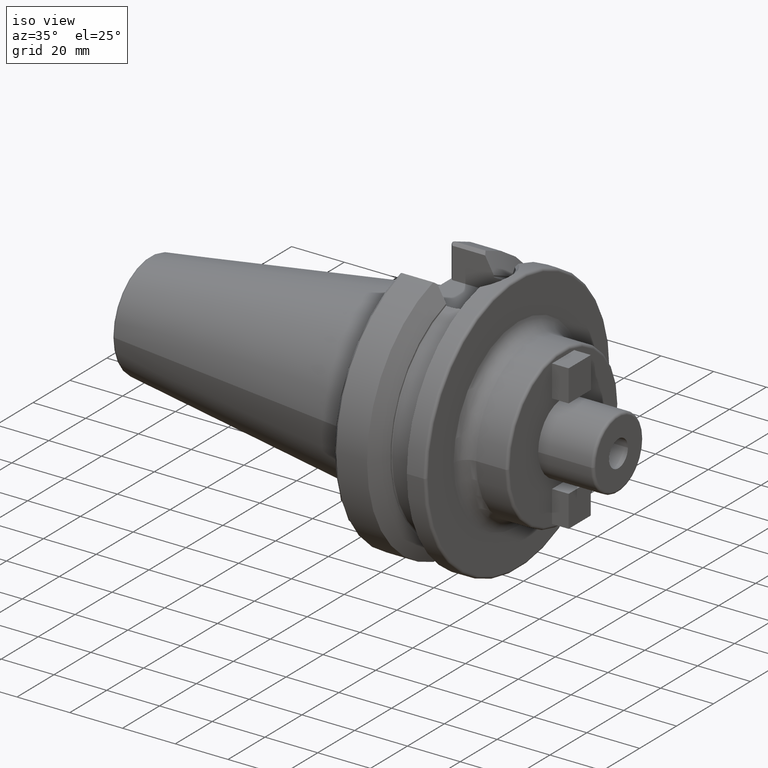
[diagram: clean part render]
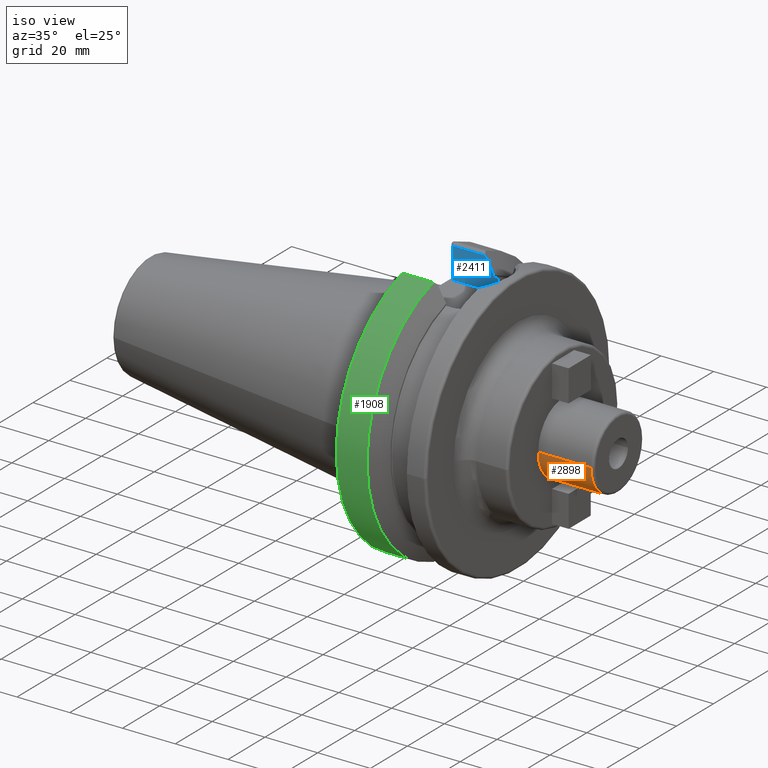
[diagram: same view with three faces highlighted in distinct colors, each labeled with its STEP entity id]
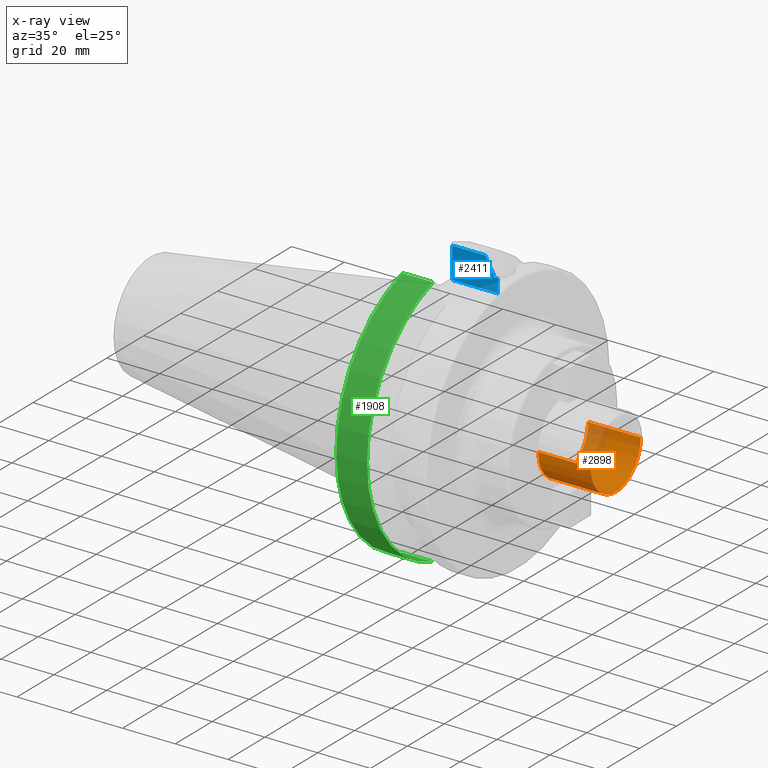
[diagram: x-ray of the same camera — body ghosted, the three highlighted faces saturated]
A machine part, iso view with three faces highlighted in distinct colors.
The next image is the same camera in x-ray (body ghosted, the three faces saturated) — at least one of them is partly hidden behind the body in this view.
Their STEP definitions:

[orange] entity #2898 — the highlighted cylindrical surface (partial cylindrical patch) has radius 13.5 mm, axis along (1, 0, 0).
#897=CARTESIAN_POINT('',(5.5E1,0.E0,0.E0));
#898=DIRECTION('',(-1.E0,0.E0,0.E0));
#899=DIRECTION('',(0.E0,1.E0,0.E0));
#900=AXIS2_PLACEMENT_3D('',#897,#898,#899);
#959=CARTESIAN_POINT('',(7.5E1,0.E0,0.E0));
#960=DIRECTION('',(-1.E0,0.E0,0.E0));
#961=DIRECTION('',(0.E0,1.E0,0.E0));
#962=AXIS2_PLACEMENT_3D('',#959,#960,#961);
#964=DIRECTION('',(-1.E0,0.E0,2.568791395901E-13));
#965=VECTOR('',#964,2.E1);
#966=CARTESIAN_POINT('',(7.5E1,1.35E1,-5.136480609683E-12));
#967=LINE('',#966,#965);
#968=DIRECTION('',(-1.E0,0.E0,-2.571582338920E-13));
#969=VECTOR('',#968,2.E1);
#970=CARTESIAN_POINT('',(7.5E1,-1.35E1,5.142062495721E-12));
#971=LINE('',#970,#969);
#1525=CARTESIAN_POINT('',(5.5E1,1.35E1,0.E0));
#1526=CARTESIAN_POINT('',(5.5E1,-1.35E1,0.E0));
#1527=VERTEX_POINT('',#1525);
#1528=VERTEX_POINT('',#1526);
#1587=CARTESIAN_POINT('',(7.5E1,1.35E1,0.E0));
#1588=CARTESIAN_POINT('',(7.5E1,-1.35E1,0.E0));
#1589=VERTEX_POINT('',#1587);
#1590=VERTEX_POINT('',#1588);
#2887=CARTESIAN_POINT('',(3.61E1,0.E0,0.E0));
#2888=DIRECTION('',(1.E0,0.E0,0.E0));
#2889=DIRECTION('',(0.E0,-1.E0,0.E0));
#2890=AXIS2_PLACEMENT_3D('',#2887,#2888,#2889);
#2891=CYLINDRICAL_SURFACE('',#2890,1.35E1);
#2892=ORIENTED_EDGE('',*,*,#2878,.F.);
#2893=ORIENTED_EDGE('',*,*,#2853,.T.);
#2894=ORIENTED_EDGE('',*,*,#2818,.T.);
#2895=ORIENTED_EDGE('',*,*,#2850,.F.);
#2896=EDGE_LOOP('',(#2892,#2893,#2894,#2895));
#2897=FACE_OUTER_BOUND('',#2896,.F.);
#2898=ADVANCED_FACE('',(#2897),#2891,.T.);
#901=CIRCLE('',#900,1.35E1);
#963=CIRCLE('',#962,1.35E1);
#2818=EDGE_CURVE('',#1527,#1528,#901,.T.);
#2850=EDGE_CURVE('',#1590,#1528,#971,.T.);
#2853=EDGE_CURVE('',#1589,#1527,#967,.T.);
#2878=EDGE_CURVE('',#1589,#1590,#963,.T.);

[blue] entity #2411 — the highlighted planar face has unit normal (0, 1, 0).
#639=DIRECTION('',(0.E0,0.E0,1.E0));
#640=VECTOR('',#639,4.678451531613E-1);
#641=CARTESIAN_POINT('',(1.96625E1,1.29025E1,4.062531376802E1));
#642=LINE('',#641,#640);
#643=CARTESIAN_POINT('',(1.99125E1,1.29025E1,4.036293000700E1));
#644=CARTESIAN_POINT('',(1.988482223968E1,1.29025E1,4.036293000700E1));
#645=CARTESIAN_POINT('',(1.983275140013E1,1.29025E1,4.037231907874E1));
#646=CARTESIAN_POINT('',(1.976358989115E1,1.29025E1,4.040921074747E1));
#647=CARTESIAN_POINT('',(1.970597803203E1,1.29025E1,4.046933362101E1));
#648=CARTESIAN_POINT('',(1.967010312706E1,1.29025E1,4.054571527488E1));
#649=CARTESIAN_POINT('',(1.96625E1,1.29025E1,4.059802443585E1));
#650=CARTESIAN_POINT('',(1.96625E1,1.29025E1,4.062531376802E1));
#652=DIRECTION('',(1.E0,0.E0,0.E0));
#653=VECTOR('',#652,1.435E0);
#654=CARTESIAN_POINT('',(1.99125E1,1.29025E1,4.036293000700E1));
#655=LINE('',#654,#653);
#656=DIRECTION('',(0.E0,0.E0,1.E0));
#657=VECTOR('',#656,5.162930007E0);
#658=CARTESIAN_POINT('',(2.13475E1,1.29025E1,3.52E1));
#659=LINE('',#658,#657);
#660=DIRECTION('',(0.E0,0.E0,1.E0));
#661=VECTOR('',#660,1.177335042340E1);
#662=CARTESIAN_POINT('',(4.E0,1.29025E1,3.52E1));
#663=LINE('',#662,#661);
#664=DIRECTION('',(1.E0,0.E0,0.E0));
#665=VECTOR('',#664,1.240508297825E1);
#666=CARTESIAN_POINT('',(4.E0,1.29025E1,4.697335042340E1));
#667=LINE('',#666,#665);
#668=CARTESIAN_POINT('',(1.96625E1,1.29025E1,4.109315892118E1));
#669=CARTESIAN_POINT('',(1.932181966297E1,1.29025E1,4.171163717070E1));
#670=CARTESIAN_POINT('',(1.862628256782E1,1.29025E1,4.297182203666E1));
#671=CARTESIAN_POINT('',(1.754114212137E1,1.29025E1,4.493063136453E1));
#672=CARTESIAN_POINT('',(1.678855217457E1,1.29025E1,4.628456220339E1));
#673=CARTESIAN_POINT('',(1.640508297825E1,1.29025E1,4.697335042340E1));
#687=DIRECTION('',(-1.E0,0.E0,0.E0));
#688=VECTOR('',#687,1.73475E1);
#689=CARTESIAN_POINT('',(2.13475E1,1.29025E1,3.52E1));
#690=LINE('',#689,#688);
#1314=CARTESIAN_POINT('',(1.96625E1,1.29025E1,4.062531376802E1));
#1316=VERTEX_POINT('',#1314);
#1322=CARTESIAN_POINT('',(1.99125E1,1.29025E1,4.036293000700E1));
#1324=VERTEX_POINT('',#1322);
#1351=CARTESIAN_POINT('',(1.96625E1,1.29025E1,4.109315892118E1));
#1353=VERTEX_POINT('',#1351);
#1441=CARTESIAN_POINT('',(2.13475E1,1.29025E1,3.52E1));
#1443=VERTEX_POINT('',#1441);
#1456=CARTESIAN_POINT('',(2.13475E1,1.29025E1,4.036293000700E1));
#1457=VERTEX_POINT('',#1456);
#1458=VERTEX_POINT('',#673);
#1496=CARTESIAN_POINT('',(4.E0,1.29025E1,3.52E1));
#1497=CARTESIAN_POINT('',(4.E0,1.29025E1,4.697335042340E1));
#1498=VERTEX_POINT('',#1496);
#1499=VERTEX_POINT('',#1497);
#2394=CARTESIAN_POINT('',(2.13475E1,1.29025E1,3.52E1));
#2395=DIRECTION('',(0.E0,1.E0,0.E0));
#2396=DIRECTION('',(-1.E0,0.E0,0.E0));
#2397=AXIS2_PLACEMENT_3D('',#2394,#2395,#2396);
#2398=PLANE('',#2397);
#2399=ORIENTED_EDGE('',*,*,#1836,.F.);
#2400=ORIENTED_EDGE('',*,*,#1990,.F.);
#2401=ORIENTED_EDGE('',*,*,#2022,.T.);
#2402=ORIENTED_EDGE('',*,*,#2139,.F.);
#2404=ORIENTED_EDGE('',*,*,#2403,.T.);
#2406=ORIENTED_EDGE('',*,*,#2405,.T.);
#2407=ORIENTED_EDGE('',*,*,#2387,.T.);
#2408=ORIENTED_EDGE('',*,*,#1868,.F.);
#2409=EDGE_LOOP('',(#2399,#2400,#2401,#2402,#2404,#2406,#2407,#2408));
#2410=FACE_OUTER_BOUND('',#2409,.F.);
#2411=ADVANCED_FACE('',(#2410),#2398,.F.);
#651=B_SPLINE_CURVE_WITH_KNOTS('',3,(#643,#644,#645,#646,#647,#648,#649,#650),
.UNSPECIFIED.,.F.,.F.,(4,1,1,1,1,4),(0.E0,2.E-1,4.E-1,6.E-1,8.E-1,1.E0),
.UNSPECIFIED.);
#674=B_SPLINE_CURVE_WITH_KNOTS('',3,(#668,#669,#670,#671,#672,#673),
.UNSPECIFIED.,.F.,.F.,(4,1,1,4),(0.E0,3.333333333333E-1,6.666666666667E-1,1.E0),
.UNSPECIFIED.);
#1836=EDGE_CURVE('',#1316,#1353,#642,.T.);
#1868=EDGE_CURVE('',#1353,#1458,#674,.T.);
#1990=EDGE_CURVE('',#1324,#1316,#651,.T.);
#2022=EDGE_CURVE('',#1324,#1457,#655,.T.);
#2139=EDGE_CURVE('',#1443,#1457,#659,.T.);
#2387=EDGE_CURVE('',#1499,#1458,#667,.T.);
#2403=EDGE_CURVE('',#1443,#1498,#690,.T.);
#2405=EDGE_CURVE('',#1498,#1499,#663,.T.);

[green] entity #1908 — the highlighted cylindrical surface (partial cylindrical patch) has radius 49.9875 mm, axis along (1, 0, 0).
#209=CARTESIAN_POINT('',(1.566933176383E1,0.E0,0.E0));
#210=DIRECTION('',(1.E0,0.E0,0.E0));
#211=DIRECTION('',(0.E0,-2.837968869610E-1,9.588844179312E-1));
#212=AXIS2_PLACEMENT_3D('',#209,#210,#211);
#214=DIRECTION('',(1.E0,-7.302338068593E-8,9.708531994237E-8));
#215=VECTOR('',#214,1.166933176412E1);
#216=CARTESIAN_POINT('',(3.999999999701E0,-1.386327248661E1,-4.802665840350E1));
#217=LINE('',#216,#215);
#218=CARTESIAN_POINT('',(4.E0,0.E0,0.E0));
#219=DIRECTION('',(-1.E0,0.E0,0.E0));
#220=DIRECTION('',(0.E0,-2.773348004750E-1,-9.607733387462E-1));
#221=AXIS2_PLACEMENT_3D('',#218,#219,#220);
#223=DIRECTION('',(-9.999999999989E-1,8.887251744650E-7,1.189757232592E-6));
#224=VECTOR('',#223,1.166933177277E1);
#225=CARTESIAN_POINT('',(1.566933176383E1,-1.418629688696E1,4.793223484134E1));
#226=LINE('',#225,#224);
#603=CARTESIAN_POINT('',(3.999999999701E0,-1.386327248661E1,-4.802665840350E1));
#1472=CARTESIAN_POINT('',(1.566933176383E1,-1.418629688696E1,4.793223484134E1));
#1473=CARTESIAN_POINT('',(1.566933176383E1,-1.386327333875E1,
-4.802665727057E1));
#1474=VERTEX_POINT('',#1472);
#1475=VERTEX_POINT('',#1473);
#1488=CARTESIAN_POINT('',(4.E0,-1.418631682991E1,4.793222893890E1));
#1489=VERTEX_POINT('',#1488);
#1510=VERTEX_POINT('',#603);
#1894=CARTESIAN_POINT('',(-1.0879E2,0.E0,0.E0));
#1895=DIRECTION('',(1.E0,0.E0,0.E0));
#1896=DIRECTION('',(0.E0,-1.E0,0.E0));
#1897=AXIS2_PLACEMENT_3D('',#1894,#1895,#1896);
#1898=CYLINDRICAL_SURFACE('',#1897,4.99875E1);
#1899=ORIENTED_EDGE('',*,*,#1885,.T.);
#1901=ORIENTED_EDGE('',*,*,#1900,.F.);
#1903=ORIENTED_EDGE('',*,*,#1902,.T.);
#1905=ORIENTED_EDGE('',*,*,#1904,.F.);
#1906=EDGE_LOOP('',(#1899,#1901,#1903,#1905));
#1907=FACE_OUTER_BOUND('',#1906,.F.);
#1908=ADVANCED_FACE('',(#1907),#1898,.T.);
#213=CIRCLE('',#212,4.99875E1);
#222=CIRCLE('',#221,4.99875E1);
#1885=EDGE_CURVE('',#1474,#1475,#213,.T.);
#1900=EDGE_CURVE('',#1510,#1475,#217,.T.);
#1902=EDGE_CURVE('',#1510,#1489,#222,.T.);
#1904=EDGE_CURVE('',#1474,#1489,#226,.T.);